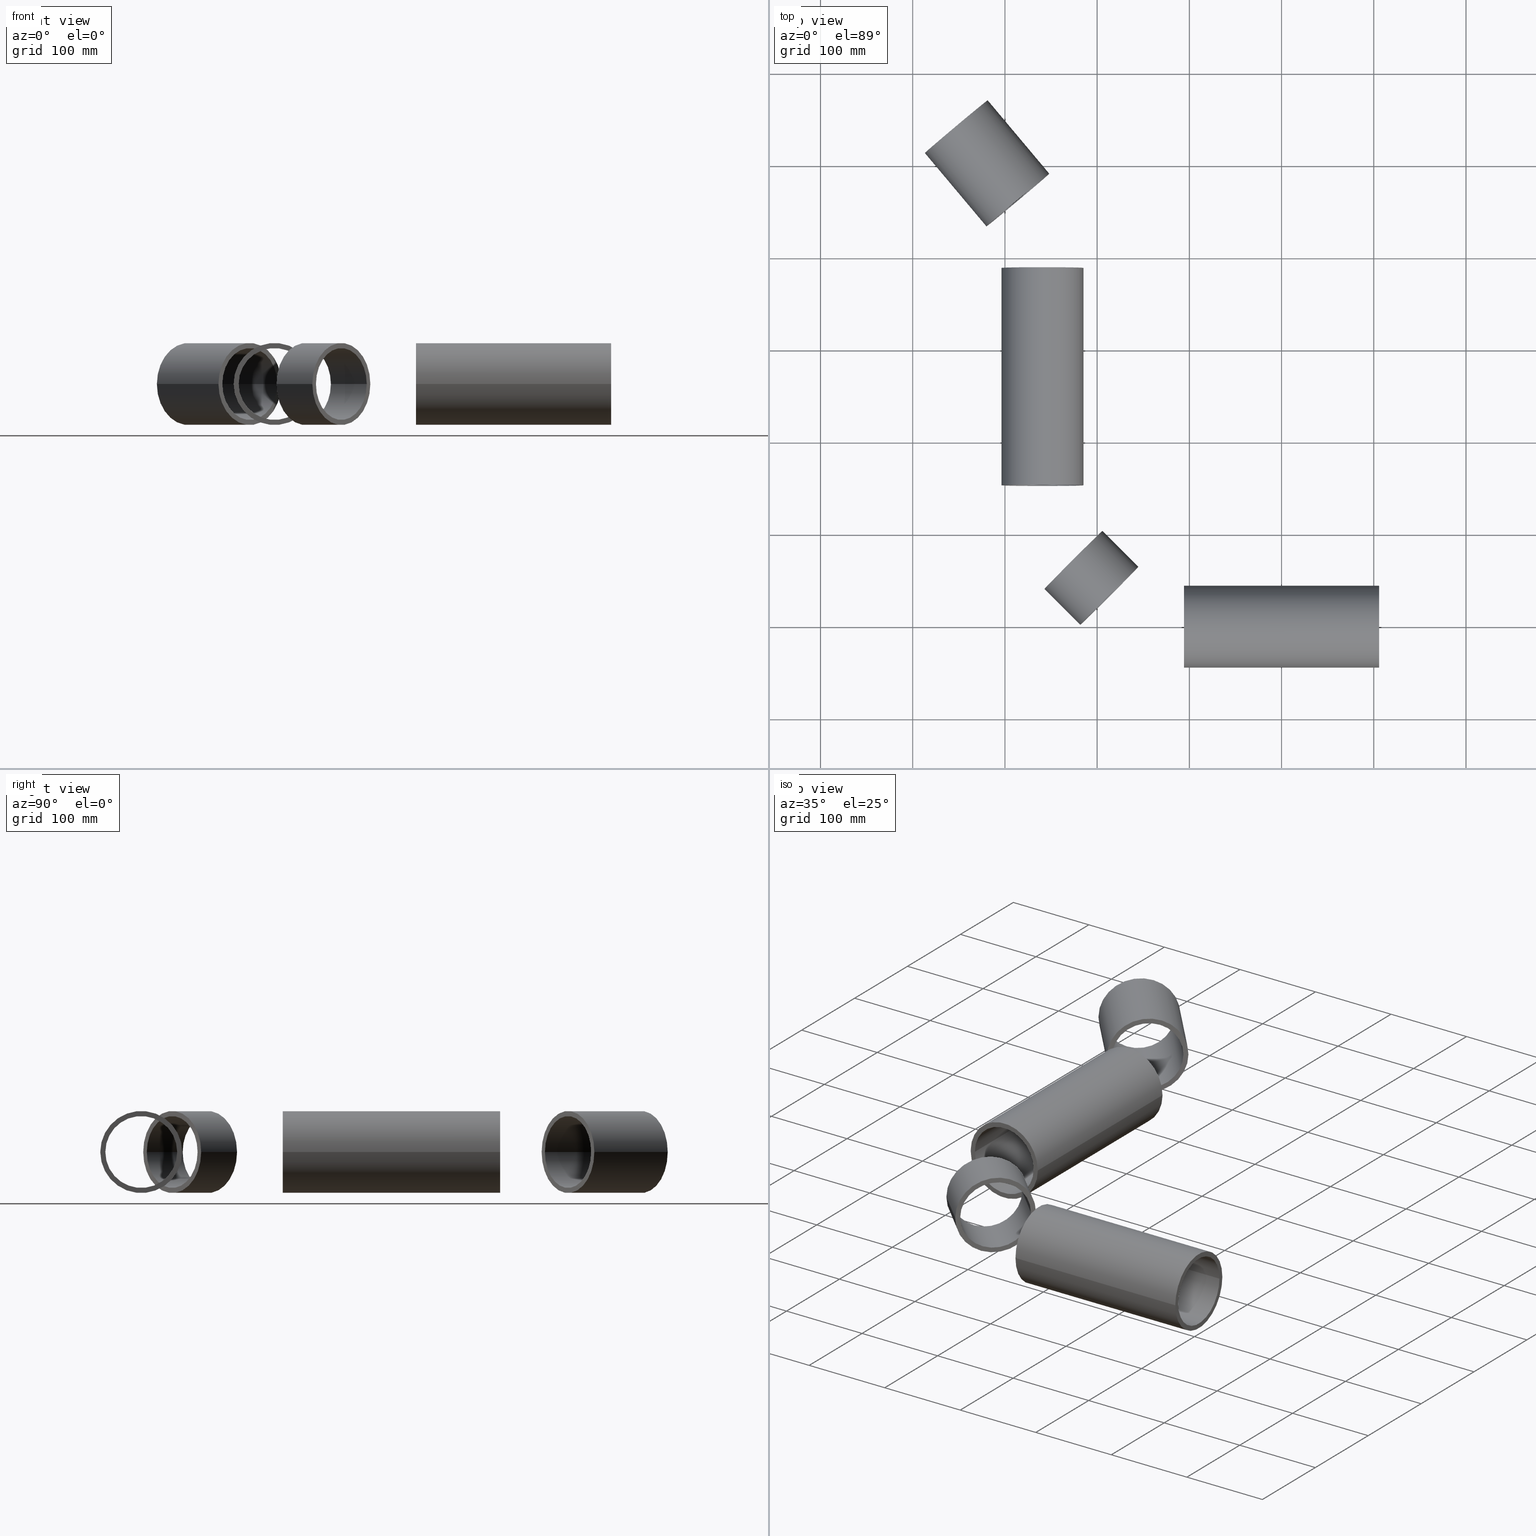
[diagram: canonical four-view strip — front | top / right | iso, engineering-drawing reading convention]
A machine part, canonical four-view strip (front | top / right | iso — engineering-drawing reading convention). The complete STEP part file that produces these views, byte-faithful:
ISO-10303-21;
HEADER;
FILE_DESCRIPTION (( 'STEP AP203' ),
    '1' );
FILE_NAME ('3996-35-10_REV_.step',
    '2026-03-04T02:48:12',
    ( '' ),
    ( '' ),
    'SwSTEP 2.0',
    'SolidWorks 2025',
    '' );
FILE_SCHEMA (( 'CONFIG_CONTROL_DESIGN' ));
ENDSEC;

DATA;
#1 = ORIENTED_EDGE ( 'NONE', *, *, #189, .F. ) ;
#2 = CARTESIAN_POINT ( 'NONE',  ( -105.8045635173704966, -1.203685620153159673E-14, 0.000000000000000000 ) ) ;
#3 = EDGE_LOOP ( 'NONE', ( #416, #512, #362, #326 ) ) ;
#4 = CYLINDRICAL_SURFACE ( 'NONE', #424, 44.45000000000001705 ) ;
#5 = EDGE_LOOP ( 'NONE', ( #627, #352, #290, #727 ) ) ;
#6 = DIRECTION ( 'NONE',  ( -1.000000000000000000, 0.000000000000000000, 0.000000000000000000 ) ) ;
#7 = EDGE_CURVE ( 'NONE', #80, #696, #73, .T. ) ;
#8 = ORIENTED_EDGE ( 'NONE', *, *, #623, .F. ) ;
#9 = EDGE_CURVE ( 'NONE', #110, #227, #411, .T. ) ;
#10 = AXIS2_PLACEMENT_3D ( 'NONE', #602, #529, #198 ) ;
#11 = CARTESIAN_POINT ( 'NONE',  ( 105.8045635173699992, -38.95000000000000995, 4.769999282678943960E-15 ) ) ;
#12 = CIRCLE ( 'NONE', #93, 44.45000000000004547 ) ;
#13 = CIRCLE ( 'NONE', #228, 44.45000000000005258 ) ;
#14 = EDGE_LOOP ( 'NONE', ( #445, #231, #458, #669 ) ) ;
#15 = DIRECTION ( 'NONE',  ( -0.7660444431189763481, -0.6427876096865413613, 0.000000000000000000 ) ) ;
#16 = DIRECTION ( 'NONE',  ( 2.220446049250312588E-16, 1.000000000000000000, 0.000000000000000000 ) ) ;
#17 = VERTEX_POINT ( 'NONE', #715 ) ;
#18 = CARTESIAN_POINT ( 'NONE',  ( -352.7675603857644546, 542.3395555688102831, 0.000000000000000000 ) ) ;
#19 = DIRECTION ( 'NONE',  ( -2.354570124668123057E-16, -1.000000000000000000, -0.000000000000000000 ) ) ;
#20 = EDGE_LOOP ( 'NONE', ( #720, #119, #463, #576 ) ) ;
#21 = CYLINDRICAL_SURFACE ( 'NONE', #320, 38.95000000000003837 ) ;
#22 = CARTESIAN_POINT ( 'NONE',  ( -298.1454364826298047, 153.3908729652592058, 4.769999282678941594E-15 ) ) ;
#23 = CARTESIAN_POINT ( 'NONE',  ( -186.7682899632294209, 33.53627355413972566, 0.000000000000000000 ) ) ;
#24 = AXIS2_PLACEMENT_3D ( 'NONE', #526, #588, #645 ) ;
#25 = CARTESIAN_POINT ( 'NONE',  ( -352.7675603857644546, 542.3395555688102831, 0.000000000000000000 ) ) ;
#26 = CC_DESIGN_PERSON_AND_ORGANIZATION_ASSIGNMENT ( #265, #649, ( #266 ) ) ;
#27 = FACE_OUTER_BOUND ( 'NONE', #617, .T. ) ;
#28 = CARTESIAN_POINT ( 'NONE',  ( -186.7682899632294209, 33.53627355413972566, 0.000000000000000000 ) ) ;
#29 = DIRECTION ( 'NONE',  ( -0.7660444431189763481, -0.6427876096865413613, 0.000000000000000000 ) ) ;
#30 = CARTESIAN_POINT ( 'NONE',  ( -298.1454364826297478, 389.1500489170994115, 4.769999282678941594E-15 ) ) ;
#31 = PERSON_AND_ORGANIZATION ( #453, #577 ) ;
#32 = CARTESIAN_POINT ( 'NONE',  ( -259.1954364826297024, 389.1500489170994115, 0.000000000000000000 ) ) ;
#33 = DIRECTION ( 'NONE',  ( 0.7071067811865520136, -0.7071067811865432429, 0.000000000000000000 ) ) ;
#34 = EDGE_CURVE ( 'NONE', #80, #51, #367, .T. ) ;
#35 = EDGE_CURVE ( 'NONE', #525, #100, #209, .T. ) ;
#36 = PERSON_AND_ORGANIZATION_ROLE ( 'classification_officer' ) ;
#37 = DIRECTION ( 'NONE',  ( -2.354570124668123057E-16, -1.000000000000000000, -0.000000000000000000 ) ) ;
#38 = AXIS2_PLACEMENT_3D ( 'NONE', #186, #409, #636 ) ;
#39 = PLANE ( 'NONE',  #83 ) ;
#40 = CIRCLE ( 'NONE', #724, 44.45000000000003837 ) ;
#41 = APPROVAL_STATUS ( 'not_yet_approved' ) ;
#42 = DIRECTION ( 'NONE',  ( 1.000000000000000000, 1.224646799147352961E-16, -0.000000000000000000 ) ) ;
#43 = APPROVAL_STATUS ( 'not_yet_approved' ) ;
#44 = PRODUCT_DEFINITION_SHAPE ( 'NONE', 'NONE',  #133 ) ;
#45 = CARTESIAN_POINT ( 'NONE',  ( -298.1454364826297478, 389.1500489170994115, 4.769999282678943171E-15 ) ) ;
#46 = EDGE_LOOP ( 'NONE', ( #728, #508 ) ) ;
#47 = CC_DESIGN_PERSON_AND_ORGANIZATION_ASSIGNMENT ( #138, #36, ( #426 ) ) ;
#48 = VECTOR ( 'NONE', #99, 1000.000000000000000 ) ;
#49 = DIRECTION ( 'NONE',  ( 0.000000000000000000, 1.000000000000000000, 0.000000000000000000 ) ) ;
#50 = DIRECTION ( 'NONE',  ( -1.000000000000000000, -1.110223024625156294E-16, 0.000000000000000000 ) ) ;
#51 = VERTEX_POINT ( 'NONE', #596 ) ;
#52 = ORIENTED_EDGE ( 'NONE', *, *, #267, .F. ) ;
#53 = ADVANCED_FACE ( 'NONE', ( #305 ), #252, .T. ) ;
#54 = VERTEX_POINT ( 'NONE', #654 ) ;
#55 = AXIS2_PLACEMENT_3D ( 'NONE', #647, #263, #310 ) ;
#56 = ORIENTED_EDGE ( 'NONE', *, *, #126, .F. ) ;
#57 = AXIS2_PLACEMENT_3D ( 'NONE', #28, #250, #695 ) ;
#58 = ORIENTED_EDGE ( 'NONE', *, *, #364, .F. ) ;
#59 = ORIENTED_EDGE ( 'NONE', *, *, #470, .F. ) ;
#60 = LINE ( 'NONE', #45, #497 ) ;
#61 = ORIENTED_EDGE ( 'NONE', *, *, #348, .T. ) ;
#62 = ADVANCED_FACE ( 'NONE', ( #420 ), #704, .T. ) ;
#63 = DIRECTION ( 'NONE',  ( -2.354570124668123057E-16, -1.000000000000000000, -0.000000000000000000 ) ) ;
#64 = EDGE_LOOP ( 'NONE', ( #169, #171 ) ) ;
#65 = PLANE ( 'NONE',  #205 ) ;
#66 = ORIENTED_EDGE ( 'NONE', *, *, #314, .F. ) ;
#67 = DIRECTION ( 'NONE',  ( -0.6427876096865413613, 0.7660444431189764591, 0.000000000000000000 ) ) ;
#68 = DIRECTION ( 'NONE',  ( 0.000000000000000000, -1.000000000000000000, 0.000000000000000000 ) ) ;
#69 = VECTOR ( 'NONE', #151, 1000.000000000000000 ) ;
#70 = CARTESIAN_POINT ( 'NONE',  ( -322.9301293262802801, 567.3761329661010677, 0.000000000000000000 ) ) ;
#71 = AXIS2_PLACEMENT_3D ( 'NONE', #561, #299, #528 ) ;
#72 = VECTOR ( 'NONE', #361, 1000.000000000000000 ) ;
#73 = LINE ( 'NONE', #244, #217 ) ;
#74 = DIRECTION ( 'NONE',  ( 0.7071067811865520136, -0.7071067811865432429, 0.000000000000000000 ) ) ;
#75 = CARTESIAN_POINT ( 'NONE',  ( -259.1954364826297592, 153.3908729652592058, 0.000000000000000000 ) ) ;
#76 = CARTESIAN_POINT ( 'NONE',  ( -105.8045635173704966, -44.45000000000003126, 5.443555022209987275E-15 ) ) ;
#77 = DIRECTION ( 'NONE',  ( 0.7071067811865520136, -0.7071067811865432429, 0.000000000000000000 ) ) ;
#78 = FACE_OUTER_BOUND ( 'NONE', #103, .T. ) ;
#79 = CC_DESIGN_PERSON_AND_ORGANIZATION_ASSIGNMENT ( #653, #433, ( #133 ) ) ;
#80 = VERTEX_POINT ( 'NONE', #86 ) ;
#81 = LINE ( 'NONE', #478, #369 ) ;
#82 = DIRECTION ( 'NONE',  ( -1.000000000000000000, -1.110223024625156294E-16, 0.000000000000000000 ) ) ;
#83 = AXIS2_PLACEMENT_3D ( 'NONE', #535, #253, #701 ) ;
#84 = LINE ( 'NONE', #538, #140 ) ;
#85 = DATE_AND_TIME ( #147, #298 ) ;
#86 = CARTESIAN_POINT ( 'NONE',  ( -318.7168848891259927, 570.9114648193771018, 0.000000000000000000 ) ) ;
#87 = CARTESIAN_POINT ( 'NONE',  ( -186.7682899632294209, 33.53627355413972566, 0.000000000000000000 ) ) ;
#88 = ADVANCED_FACE ( 'NONE', ( #434 ), #707, .F. ) ;
#89 = FACE_OUTER_BOUND ( 'NONE', #230, .T. ) ;
#90 = DIRECTION ( 'NONE',  ( 0.7071067811865431318, 0.7071067811865519026, 0.000000000000000000 ) ) ;
#91 = CARTESIAN_POINT ( 'NONE',  ( -105.8045635173704966, -1.203685620153159673E-14, 0.000000000000000000 ) ) ;
#92 = DIRECTION ( 'NONE',  ( -0.7071067811865519026, 0.7071067811865431318, -0.000000000000000000 ) ) ;
#93 = AXIS2_PLACEMENT_3D ( 'NONE', #694, #515, #6 ) ;
#94 = AXIS2_PLACEMENT_3D ( 'NONE', #304, #134, #522 ) ;
#95 = DATE_AND_TIME ( #600, #452 ) ;
#96 = FACE_OUTER_BOUND ( 'NONE', #131, .T. ) ;
#97 = CALENDAR_DATE ( 2026, 4, 3 ) ;
#98 = ADVANCED_FACE ( 'NONE', ( #212, #89 ), #700, .T. ) ;
#99 = DIRECTION ( 'NONE',  ( 1.000000000000000000, 1.224646799147352961E-16, -0.000000000000000000 ) ) ;
#100 = VERTEX_POINT ( 'NONE', #365 ) ;
#101 = CARTESIAN_POINT ( 'NONE',  ( -105.8045635173704966, -38.95000000000003837, 4.769999282678943960E-15 ) ) ;
#102 = AXIS2_PLACEMENT_3D ( 'NONE', #350, #573, #68 ) ;
#103 = EDGE_LOOP ( 'NONE', ( #59, #731, #174, #663 ) ) ;
#104 = DIRECTION ( 'NONE',  ( -1.000000000000000000, 0.000000000000000000, 0.000000000000000000 ) ) ;
#105 = CIRCLE ( 'NONE', #733, 38.95000000000003837 ) ;
#106 = CIRCLE ( 'NONE', #94, 38.95000000000003126 ) ;
#107 = CARTESIAN_POINT ( 'NONE',  ( -159.2264808360135362, 61.07808268135593721, 4.769999282678943960E-15 ) ) ;
#108 = ORIENTED_EDGE ( 'NONE', *, *, #689, .T. ) ;
#109 = EDGE_CURVE ( 'NONE', #286, #606, #587, .T. ) ;
#110 = VERTEX_POINT ( 'NONE', #650 ) ;
#111 = EDGE_LOOP ( 'NONE', ( #571, #455 ) ) ;
#112 = ORIENTED_EDGE ( 'NONE', *, *, #34, .T. ) ;
#113 = PLANE ( 'NONE',  #355 ) ;
#114 = ORIENTED_EDGE ( 'NONE', *, *, #572, .F. ) ;
#115 = CIRCLE ( 'NONE', #532, 44.45000000000002416 ) ;
#116 = EDGE_CURVE ( 'NONE', #54, #383, #84, .T. ) ;
#117 = CARTESIAN_POINT ( 'NONE',  ( -259.1954364826297024, 389.1500489170994115, 0.000000000000000000 ) ) ;
#118 = DIRECTION ( 'NONE',  ( 0.7660444431189770143, 0.6427876096865405842, 0.000000000000000000 ) ) ;
#119 = ORIENTED_EDGE ( 'NONE', *, *, #427, .T. ) ;
#120 = DIRECTION ( 'NONE',  ( 0.6427876096865412503, -0.7660444431189763481, -0.000000000000000000 ) ) ;
#121 = EDGE_LOOP ( 'NONE', ( #302, #340, #563, #165 ) ) ;
#122 = CARTESIAN_POINT ( 'NONE',  ( -285.9833477455069328, 462.7492302262081694, 0.000000000000000000 ) ) ;
#123 = DIRECTION ( 'NONE',  ( 0.6427876096865413613, -0.7660444431189764591, -0.000000000000000000 ) ) ;
#124 = DIRECTION ( 'NONE',  ( 2.220446049250312588E-16, 1.000000000000000000, 0.000000000000000000 ) ) ;
#125 = ORIENTED_EDGE ( 'NONE', *, *, #109, .F. ) ;
#126 = EDGE_CURVE ( 'NONE', #383, #358, #327, .T. ) ;
#127 = CARTESIAN_POINT ( 'NONE',  ( -352.7675603857644546, 542.3395555688102831, 0.000000000000000000 ) ) ;
#128 = CARTESIAN_POINT ( 'NONE',  ( -186.7682899632294209, 33.53627355413972566, 0.000000000000000000 ) ) ;
#129 = CARTESIAN_POINT ( 'NONE',  ( -285.9833477455069328, 462.7492302262081694, 0.000000000000000000 ) ) ;
#130 = VECTOR ( 'NONE', #492, 1000.000000000000000 ) ;
#131 = EDGE_LOOP ( 'NONE', ( #225, #241, #277, #671 ) ) ;
#132 = DIRECTION ( 'NONE',  ( -0.6427876096865413613, 0.7660444431189764591, 0.000000000000000000 ) ) ;
#133 = PRODUCT_DEFINITION ( 'UNKNOWN', '', #332, #196 ) ;
#134 = DIRECTION ( 'NONE',  ( -1.000000000000000000, -1.110223024625156294E-16, 0.000000000000000000 ) ) ;
#135 = FACE_OUTER_BOUND ( 'NONE', #639, .T. ) ;
#136 = DIRECTION ( 'NONE',  ( -2.354570124668123057E-16, -1.000000000000000000, -0.000000000000000000 ) ) ;
#137 = FACE_OUTER_BOUND ( 'NONE', #552, .T. ) ;
#138 = PERSON_AND_ORGANIZATION ( #453, #577 ) ;
#139 = EDGE_CURVE ( 'NONE', #220, #630, #354, .T. ) ;
#140 = VECTOR ( 'NONE', #37, 1000.000000000000000 ) ;
#141 = EDGE_CURVE ( 'NONE', #100, #385, #283, .T. ) ;
#142 = VECTOR ( 'NONE', #597, 1000.000000000000114 ) ;
#143 = DIRECTION ( 'NONE',  ( -1.000000000000000000, 2.220446049250312588E-16, 0.000000000000000000 ) ) ;
#144 = AXIS2_PLACEMENT_3D ( 'NONE', #292, #351, #474 ) ;
#145 = CALENDAR_DATE ( 2026, 4, 3 ) ;
#146 = DIRECTION ( 'NONE',  ( 1.000000000000000000, 1.224646799147352961E-16, -0.000000000000000000 ) ) ;
#147 = CALENDAR_DATE ( 2026, 4, 3 ) ;
#148 = PLANE ( 'NONE',  #152 ) ;
#149 = PLANE ( 'NONE',  #275 ) ;
#150 = DATE_TIME_ROLE ( 'creation_date' ) ;
#151 = DIRECTION ( 'NONE',  ( 1.000000000000000000, 1.224646799147352961E-16, -0.000000000000000000 ) ) ;
#152 = AXIS2_PLACEMENT_3D ( 'NONE', #32, #201, #143 ) ;
#153 = DIRECTION ( 'NONE',  ( -0.7660444431189763481, -0.6427876096865412503, 0.000000000000000000 ) ) ;
#154 = AXIS2_PLACEMENT_3D ( 'NONE', #614, #50, #608 ) ;
#155 = ADVANCED_FACE ( 'NONE', ( #256, #431 ), #148, .T. ) ;
#156 = MECHANICAL_CONTEXT ( 'NONE', #516, 'mechanical' ) ;
#157 = CARTESIAN_POINT ( 'NONE',  ( -220.2454364826296853, 389.1500489170994115, 0.000000000000000000 ) ) ;
#158 = ORIENTED_EDGE ( 'NONE', *, *, #214, .F. ) ;
#159 = DIRECTION ( 'NONE',  ( -0.6427876096865413613, 0.7660444431189764591, 0.000000000000000000 ) ) ;
#160 = ORIENTED_EDGE ( 'NONE', *, *, #712, .T. ) ;
#161 = ADVANCED_FACE ( 'NONE', ( #370 ), #593, .T. ) ;
#162 = DIRECTION ( 'NONE',  ( -1.000000000000000000, 0.000000000000000000, 0.000000000000000000 ) ) ;
#163 = ADVANCED_FACE ( 'NONE', ( #665 ), #613, .T. ) ;
#164 = AXIS2_PLACEMENT_3D ( 'NONE', #91, #146, #486 ) ;
#165 = ORIENTED_EDGE ( 'NONE', *, *, #141, .F. ) ;
#166 = AXIS2_PLACEMENT_3D ( 'NONE', #697, #77, #90 ) ;
#167 = CIRCLE ( 'NONE', #498, 38.95000000000003837 ) ;
#168 = ORIENTED_EDGE ( 'NONE', *, *, #297, .F. ) ;
#169 = ORIENTED_EDGE ( 'NONE', *, *, #586, .F. ) ;
#170 = CC_DESIGN_PERSON_AND_ORGANIZATION_ASSIGNMENT ( #430, #540, ( #332 ) ) ;
#171 = ORIENTED_EDGE ( 'NONE', *, *, #451, .F. ) ;
#172 = EDGE_LOOP ( 'NONE', ( #112, #405 ) ) ;
#173 = CARTESIAN_POINT ( 'NONE',  ( -285.9833477455069328, 462.7492302262081694, 0.000000000000000000 ) ) ;
#174 = ORIENTED_EDGE ( 'NONE', *, *, #243, .T. ) ;
#175 = VERTEX_POINT ( 'NONE', #461 ) ;
#176 = CARTESIAN_POINT ( 'NONE',  ( -186.7682899632294209, 33.53627355413972566, 0.000000000000000000 ) ) ;
#177 = CIRCLE ( 'NONE', #307, 38.95000000000003126 ) ;
#178 = ORIENTED_EDGE ( 'NONE', *, *, #599, .F. ) ;
#179 = AXIS2_PLACEMENT_3D ( 'NONE', #603, #490, #389 ) ;
#180 = PRODUCT_RELATED_PRODUCT_CATEGORY ( 'detail', '', ( #266 ) ) ;
#181 = DIRECTION ( 'NONE',  ( 0.6427876096865413613, -0.7660444431189764591, -0.000000000000000000 ) ) ;
#182 = ORIENTED_EDGE ( 'NONE', *, *, #254, .T. ) ;
#183 = DIRECTION ( 'NONE',  ( 0.7071067811865431318, 0.7071067811865521247, 0.000000000000000000 ) ) ;
#184 = CARTESIAN_POINT ( 'NONE',  ( -320.0340232421454516, 434.1773209756414076, 5.443555022209987275E-15 ) ) ;
#185 = ORIENTED_EDGE ( 'NONE', *, *, #214, .T. ) ;
#186 = CARTESIAN_POINT ( 'NONE',  ( -186.7682899632294209, 33.53627355413972566, 0.000000000000000000 ) ) ;
#187 = DIRECTION ( 'NONE',  ( 2.220446049250312588E-16, 1.000000000000000000, 0.000000000000000000 ) ) ;
#188 = EDGE_LOOP ( 'NONE', ( #8, #178, #559, #632 ) ) ;
#189 = EDGE_CURVE ( 'NONE', #195, #282, #531, .T. ) ;
#190 = DIRECTION ( 'NONE',  ( 0.000000000000000000, -1.000000000000000000, 0.000000000000000000 ) ) ;
#191 = CARTESIAN_POINT ( 'NONE',  ( -105.8045635173704966, 38.95000000000000995, 0.000000000000000000 ) ) ;
#192 = DIRECTION ( 'NONE',  ( -1.000000000000000000, 0.000000000000000000, 0.000000000000000000 ) ) ;
#193 = AXIS2_PLACEMENT_3D ( 'NONE', #429, #584, #417 ) ;
#194 = APPROVAL_PERSON_ORGANIZATION ( #548, #734, #312 ) ;
#195 = VERTEX_POINT ( 'NONE', #191 ) ;
#196 = DESIGN_CONTEXT ( 'detailed design', #721, 'design' ) ;
#197 = DIRECTION ( 'NONE',  ( 0.7071067811865520136, -0.7071067811865432429, 0.000000000000000000 ) ) ;
#198 = DIRECTION ( 'NONE',  ( 0.7071067811865431318, 0.7071067811865519026, 0.000000000000000000 ) ) ;
#199 = DIRECTION ( 'NONE',  ( 0.6427876096865413613, -0.7660444431189764591, -0.000000000000000000 ) ) ;
#200 = ADVANCED_FACE ( 'NONE', ( #295 ), #691, .T. ) ;
#201 = DIRECTION ( 'NONE',  ( 2.220446049250312588E-16, 1.000000000000000000, 0.000000000000000000 ) ) ;
#202 = CARTESIAN_POINT ( 'NONE',  ( -214.7454364826296853, 389.1500489170994115, 0.000000000000000000 ) ) ;
#203 = MANIFOLD_SOLID_BREP ( 'Stainless chs 88.9 X 5.5 CHS(1)[4]', #387 ) ;
#204 = CIRCLE ( 'NONE', #261, 38.95000000000003126 ) ;
#205 = AXIS2_PLACEMENT_3D ( 'NONE', #242, #466, #692 ) ;
#206 = DIRECTION ( 'NONE',  ( 1.000000000000000000, 0.000000000000000000, 0.000000000000000000 ) ) ;
#207 = DIRECTION ( 'NONE',  ( -2.354570124668123057E-16, -1.000000000000000000, -0.000000000000000000 ) ) ;
#208 = APPROVAL_ROLE ( '' ) ;
#209 = LINE ( 'NONE', #371, #397 ) ;
#210 = FACE_BOUND ( 'NONE', #495, .T. ) ;
#211 = COORDINATED_UNIVERSAL_TIME_OFFSET ( 10, 0, .AHEAD. ) ;
#212 = FACE_BOUND ( 'NONE', #502, .T. ) ;
#213 = CARTESIAN_POINT ( 'NONE',  ( -382.6049914452486291, 517.3029781715194986, 4.769999282678943960E-15 ) ) ;
#214 = EDGE_CURVE ( 'NONE', #222, #236, #177, .T. ) ;
#215 =( NAMED_UNIT ( * ) PLANE_ANGLE_UNIT ( ) SI_UNIT ( $, .RADIAN. ) );
#216 = ORIENTED_EDGE ( 'NONE', *, *, #440, .F. ) ;
#217 = VECTOR ( 'NONE', #467, 1000.000000000000114 ) ;
#218 = FACE_OUTER_BOUND ( 'NONE', #64, .T. ) ;
#219 = CIRCLE ( 'NONE', #400, 44.45000000000002416 ) ;
#220 = VERTEX_POINT ( 'NONE', #22 ) ;
#221 = CYLINDRICAL_SURFACE ( 'NONE', #251, 38.95000000000004547 ) ;
#222 = VERTEX_POINT ( 'NONE', #393 ) ;
#223 = EDGE_CURVE ( 'NONE', #390, #554, #448, .T. ) ;
#224 = CARTESIAN_POINT ( 'NONE',  ( -285.9833477455069328, 462.7492302262081694, 0.000000000000000000 ) ) ;
#225 = ORIENTED_EDGE ( 'NONE', *, *, #503, .T. ) ;
#226 = DIRECTION ( 'NONE',  ( -2.354570124668123057E-16, -1.000000000000000000, -0.000000000000000000 ) ) ;
#227 = VERTEX_POINT ( 'NONE', #664 ) ;
#228 = AXIS2_PLACEMENT_3D ( 'NONE', #224, #550, #717 ) ;
#229 = ORIENTED_EDGE ( 'NONE', *, *, #243, .F. ) ;
#230 = EDGE_LOOP ( 'NONE', ( #284, #505 ) ) ;
#231 = ORIENTED_EDGE ( 'NONE', *, *, #504, .T. ) ;
#232 = DIRECTION ( 'NONE',  ( 0.6427876096865413613, -0.7660444431189764591, -0.000000000000000000 ) ) ;
#233 = EDGE_CURVE ( 'NONE', #554, #630, #333, .T. ) ;
#234 = ORIENTED_EDGE ( 'NONE', *, *, #689, .F. ) ;
#235 = CARTESIAN_POINT ( 'NONE',  ( -186.7682899632294209, 33.53627355413972566, 0.000000000000000000 ) ) ;
#236 = VERTEX_POINT ( 'NONE', #446 ) ;
#237 = CARTESIAN_POINT ( 'NONE',  ( -352.7675603857644546, 542.3395555688102831, 0.000000000000000000 ) ) ;
#238 = AXIS2_PLACEMENT_3D ( 'NONE', #23, #197, #533 ) ;
#239 = CYLINDRICAL_SURFACE ( 'NONE', #144, 38.95000000000002416 ) ;
#240 = LOCAL_TIME ( 13, 48, 12.00000000000000000, #537 ) ;
#241 = ORIENTED_EDGE ( 'NONE', *, *, #35, .T. ) ;
#242 = CARTESIAN_POINT ( 'NONE',  ( -259.1954364826297592, 153.3908729652592058, 0.000000000000000000 ) ) ;
#243 = EDGE_CURVE ( 'NONE', #195, #17, #391, .T. ) ;
#244 = CARTESIAN_POINT ( 'NONE',  ( -318.7168848891259358, 570.9114648193771018, 0.000000000000000000 ) ) ;
#245 = CYLINDRICAL_SURFACE ( 'NONE', #670, 44.45000000000001705 ) ;
#246 = CARTESIAN_POINT ( 'NONE',  ( -155.3373935394875502, 64.96716997788196579, 5.443555022209987275E-15 ) ) ;
#247 = VERTEX_POINT ( 'NONE', #621 ) ;
#248 = DIRECTION ( 'NONE',  ( 0.7071067811865429098, 0.7071067811865520136, 0.000000000000000000 ) ) ;
#249 = CLOSED_SHELL ( 'NONE', ( #62, #88, #662, #161, #388, #536 ) ) ;
#250 = DIRECTION ( 'NONE',  ( -0.7071067811865519026, 0.7071067811865431318, -0.000000000000000000 ) ) ;
#251 = AXIS2_PLACEMENT_3D ( 'NONE', #329, #181, #323 ) ;
#252 = CYLINDRICAL_SURFACE ( 'NONE', #555, 44.45000000000001705 ) ;
#253 = DIRECTION ( 'NONE',  ( -1.000000000000000000, -1.110223024625156294E-16, 0.000000000000000000 ) ) ;
#254 = EDGE_CURVE ( 'NONE', #385, #100, #680, .T. ) ;
#255 = CARTESIAN_POINT ( 'NONE',  ( 105.8045635173699992, 1.387778780781445676E-14, 0.000000000000000000 ) ) ;
#256 = FACE_BOUND ( 'NONE', #456, .T. ) ;
#257 = CARTESIAN_POINT ( 'NONE',  ( -352.7675603857644546, 542.3395555688102831, 0.000000000000000000 ) ) ;
#258 = DIRECTION ( 'NONE',  ( 0.000000000000000000, 0.000000000000000000, 1.000000000000000000 ) ) ;
#259 = CARTESIAN_POINT ( 'NONE',  ( -105.8045635173704966, -1.203685620153159673E-14, 0.000000000000000000 ) ) ;
#260 = DIRECTION ( 'NONE',  ( 0.000000000000000000, -1.000000000000000000, 0.000000000000000000 ) ) ;
#261 = AXIS2_PLACEMENT_3D ( 'NONE', #255, #469, #419 ) ;
#262 = CC_DESIGN_APPROVAL ( #693, ( #426 ) ) ;
#263 = DIRECTION ( 'NONE',  ( 2.220446049250312588E-16, 1.000000000000000000, 0.000000000000000000 ) ) ;
#264 = FACE_OUTER_BOUND ( 'NONE', #121, .T. ) ;
#265 = PERSON_AND_ORGANIZATION ( #453, #577 ) ;
#266 = PRODUCT ( '3996-35-10_REV_', '3996-35-10_REV_', '', ( #156 ) ) ;
#267 = EDGE_CURVE ( 'NONE', #282, #195, #285, .T. ) ;
#268 = DIRECTION ( 'NONE',  ( -1.000000000000000000, 0.000000000000000000, 0.000000000000000000 ) ) ;
#269 = CARTESIAN_POINT ( 'NONE',  ( -322.9301293262802801, 567.3761329661010677, 0.000000000000000000 ) ) ;
#270 = APPROVAL_DATE_TIME ( #95, #693 ) ;
#271 = CARTESIAN_POINT ( 'NONE',  ( -352.7675603857644546, 542.3395555688102831, 0.000000000000000000 ) ) ;
#272 = DIRECTION ( 'NONE',  ( 1.000000000000000000, 0.000000000000000000, 0.000000000000000000 ) ) ;
#273 = VECTOR ( 'NONE', #581, 1000.000000000000000 ) ;
#274 = PLANE ( 'NONE',  #341 ) ;
#275 = AXIS2_PLACEMENT_3D ( 'NONE', #303, #159, #153 ) ;
#276 = ADVANCED_FACE ( 'NONE', ( #568, #634 ), #113, .F. ) ;
#277 = ORIENTED_EDGE ( 'NONE', *, *, #254, .F. ) ;
#278 = ADVANCED_FACE ( 'NONE', ( #626 ), #245, .T. ) ;
#279 = EDGE_LOOP ( 'NONE', ( #336, #56 ) ) ;
#280 = DIRECTION ( 'NONE',  ( -0.6427876096865413613, 0.7660444431189764591, 0.000000000000000000 ) ) ;
#281 = EDGE_LOOP ( 'NONE', ( #114, #392 ) ) ;
#282 = VERTEX_POINT ( 'NONE', #399 ) ;
#283 = CIRCLE ( 'NONE', #482, 38.95000000000004547 ) ;
#284 = ORIENTED_EDGE ( 'NONE', *, *, #599, .T. ) ;
#285 = CIRCLE ( 'NONE', #414, 38.95000000000003126 ) ;
#286 = VERTEX_POINT ( 'NONE', #457 ) ;
#287 = EDGE_CURVE ( 'NONE', #525, #439, #328, .T. ) ;
#288 = ORIENTED_EDGE ( 'NONE', *, *, #233, .F. ) ;
#289 = FACE_OUTER_BOUND ( 'NONE', #281, .T. ) ;
#290 = ORIENTED_EDGE ( 'NONE', *, *, #338, .T. ) ;
#291 = DIRECTION ( 'NONE',  ( 1.000000000000000000, 0.000000000000000000, 0.000000000000000000 ) ) ;
#292 = CARTESIAN_POINT ( 'NONE',  ( -105.8045635173704966, -1.203685620153159673E-14, 0.000000000000000000 ) ) ;
#293 = ADVANCED_BREP_SHAPE_REPRESENTATION ( '3996-35-10_REV_', ( #675, #685, #449, #203, #521 ), #545 ) ;
#294 = ORIENTED_EDGE ( 'NONE', *, *, #373, .T. ) ;
#295 = FACE_OUTER_BOUND ( 'NONE', #5, .T. ) ;
#296 = AXIS2_PLACEMENT_3D ( 'NONE', #176, #74, #183 ) ;
#297 = EDGE_CURVE ( 'NONE', #236, #222, #681, .T. ) ;
#298 = LOCAL_TIME ( 13, 48, 12.00000000000000000, #319 ) ;
#299 = DIRECTION ( 'NONE',  ( 0.7071067811865520136, -0.7071067811865432429, 0.000000000000000000 ) ) ;
#300 = ORIENTED_EDGE ( 'NONE', *, *, #427, .F. ) ;
#301 = CYLINDRICAL_SURFACE ( 'NONE', #557, 38.95000000000003837 ) ;
#302 = ORIENTED_EDGE ( 'NONE', *, *, #35, .F. ) ;
#303 = CARTESIAN_POINT ( 'NONE',  ( -352.7675603857644546, 542.3395555688102831, 0.000000000000000000 ) ) ;
#304 = CARTESIAN_POINT ( 'NONE',  ( 105.8045635173699992, 1.387778780781445676E-14, 0.000000000000000000 ) ) ;
#305 = FACE_OUTER_BOUND ( 'NONE', #683, .T. ) ;
#306 = DIRECTION ( 'NONE',  ( -0.6427876096865413613, 0.7660444431189764591, 0.000000000000000000 ) ) ;
#307 = AXIS2_PLACEMENT_3D ( 'NONE', #128, #360, #527 ) ;
#308 = DIRECTION ( 'NONE',  ( 0.000000000000000000, -1.000000000000000000, 0.000000000000000000 ) ) ;
#309 = AXIS2_PLACEMENT_3D ( 'NONE', #18, #677, #15 ) ;
#310 = DIRECTION ( 'NONE',  ( -1.000000000000000000, 0.000000000000000000, 0.000000000000000000 ) ) ;
#311 = ADVANCED_FACE ( 'NONE', ( #353 ), #468, .T. ) ;
#312 = APPROVAL_ROLE ( '' ) ;
#313 = DIRECTION ( 'NONE',  ( 1.000000000000000000, 1.224646799147352961E-16, -0.000000000000000000 ) ) ;
#314 = EDGE_CURVE ( 'NONE', #395, #54, #12, .T. ) ;
#315 = DATE_AND_TIME ( #97, #473 ) ;
#316 = CARTESIAN_POINT ( 'NONE',  ( -259.1954364826297592, 153.3908729652592058, 0.000000000000000000 ) ) ;
#317 = LINE ( 'NONE', #640, #506 ) ;
#318 = EDGE_CURVE ( 'NONE', #51, #80, #330, .T. ) ;
#319 = COORDINATED_UNIVERSAL_TIME_OFFSET ( 10, 0, .AHEAD. ) ;
#320 = AXIS2_PLACEMENT_3D ( 'NONE', #421, #476, #372 ) ;
#321 = CARTESIAN_POINT ( 'NONE',  ( -105.8045635173704966, -1.203685620153159673E-14, 0.000000000000000000 ) ) ;
#322 = DIRECTION ( 'NONE',  ( -0.7071067811865519026, 0.7071067811865431318, -0.000000000000000000 ) ) ;
#323 = DIRECTION ( 'NONE',  ( 0.7660444431189763481, 0.6427876096865413613, 0.000000000000000000 ) ) ;
#324 = DIRECTION ( 'NONE',  ( -2.354570124668123057E-16, -1.000000000000000000, -0.000000000000000000 ) ) ;
#325 = EDGE_CURVE ( 'NONE', #175, #401, #40, .T. ) ;
#326 = ORIENTED_EDGE ( 'NONE', *, *, #586, .T. ) ;
#327 = CIRCLE ( 'NONE', #423, 44.45000000000004547 ) ;
#328 = CIRCLE ( 'NONE', #309, 38.95000000000004547 ) ;
#329 = CARTESIAN_POINT ( 'NONE',  ( -352.7675603857644546, 542.3395555688102831, 0.000000000000000000 ) ) ;
#330 = CIRCLE ( 'NONE', #543, 44.45000000000001705 ) ;
#331 = ORIENTED_EDGE ( 'NONE', *, *, #116, .F. ) ;
#332 = PRODUCT_DEFINITION_FORMATION_WITH_SPECIFIED_SOURCE ( 'ANY', '', #266, .NOT_KNOWN. ) ;
#333 = LINE ( 'NONE', #386, #589 ) ;
#334 = LINE ( 'NONE', #501, #564 ) ;
#335 = ORIENTED_EDGE ( 'NONE', *, *, #139, .F. ) ;
#336 = ORIENTED_EDGE ( 'NONE', *, *, #712, .F. ) ;
#337 = ORIENTED_EDGE ( 'NONE', *, *, #479, .T. ) ;
#338 = EDGE_CURVE ( 'NONE', #247, #562, #483, .T. ) ;
#339 = AXIS2_PLACEMENT_3D ( 'NONE', #412, #123, #118 ) ;
#340 = ORIENTED_EDGE ( 'NONE', *, *, #287, .T. ) ;
#341 = AXIS2_PLACEMENT_3D ( 'NONE', #659, #444, #666 ) ;
#342 = EDGE_LOOP ( 'NONE', ( #690, #398, #569, #335 ) ) ;
#343 = EDGE_LOOP ( 'NONE', ( #182, #565 ) ) ;
#344 = ORIENTED_EDGE ( 'NONE', *, *, #609, .T. ) ;
#345 = FACE_BOUND ( 'NONE', #406, .T. ) ;
#346 = EDGE_CURVE ( 'NONE', #286, #110, #219, .T. ) ;
#347 = ORIENTED_EDGE ( 'NONE', *, *, #364, .T. ) ;
#348 = EDGE_CURVE ( 'NONE', #395, #358, #317, .T. ) ;
#349 = DIRECTION ( 'NONE',  ( 0.7660444431189770143, 0.6427876096865405842, 0.000000000000000000 ) ) ;
#350 = CARTESIAN_POINT ( 'NONE',  ( -105.8045635173704966, -1.203685620153159673E-14, 0.000000000000000000 ) ) ;
#351 = DIRECTION ( 'NONE',  ( 1.000000000000000000, 1.224646799147352961E-16, -0.000000000000000000 ) ) ;
#352 = ORIENTED_EDGE ( 'NONE', *, *, #623, .T. ) ;
#353 = FACE_OUTER_BOUND ( 'NONE', #514, .T. ) ;
#354 = CIRCLE ( 'NONE', #55, 38.95000000000003837 ) ;
#355 = AXIS2_PLACEMENT_3D ( 'NONE', #122, #67, #509 ) ;
#356 = CC_DESIGN_SECURITY_CLASSIFICATION ( #426, ( #332 ) ) ;
#357 = CARTESIAN_POINT ( 'NONE',  ( -253.2009720557056198, 44.88533739218336649, 0.000000000000000000 ) ) ;
#358 = VERTEX_POINT ( 'NONE', #366 ) ;
#359 = DIRECTION ( 'NONE',  ( -1.000000000000000000, -1.110223024625156294E-16, 0.000000000000000000 ) ) ;
#360 = DIRECTION ( 'NONE',  ( 0.7071067811865520136, -0.7071067811865432429, 0.000000000000000000 ) ) ;
#361 = DIRECTION ( 'NONE',  ( -0.7071067811865519026, 0.7071067811865431318, -0.000000000000000000 ) ) ;
#362 = ORIENTED_EDGE ( 'NONE', *, *, #109, .T. ) ;
#363 = CARTESIAN_POINT ( 'NONE',  ( -259.1954364826297024, 389.1500489170994115, 0.000000000000000000 ) ) ;
#364 = EDGE_CURVE ( 'NONE', #447, #610, #624, .T. ) ;
#365 = CARTESIAN_POINT ( 'NONE',  ( -315.8207788049911073, 437.7126528289173848, 4.769999282678943960E-15 ) ) ;
#366 = CARTESIAN_POINT ( 'NONE',  ( -214.7454364826297422, 153.3908729652592058, 0.000000000000000000 ) ) ;
#367 = CIRCLE ( 'NONE', #413, 44.45000000000001705 ) ;
#368 = APPLICATION_PROTOCOL_DEFINITION ( 'international standard', 'config_control_design', 1994, #721 ) ;
#369 = VECTOR ( 'NONE', #648, 1000.000000000000000 ) ;
#370 = FACE_OUTER_BOUND ( 'NONE', #3, .T. ) ;
#371 = CARTESIAN_POINT ( 'NONE',  ( -382.6049914452486291, 517.3029781715194986, 4.769999282678943960E-15 ) ) ;
#372 = DIRECTION ( 'NONE',  ( 1.000000000000000000, 0.000000000000000000, 0.000000000000000000 ) ) ;
#373 = EDGE_CURVE ( 'NONE', #236, #610, #81, .T. ) ;
#374 = DIRECTION ( 'NONE',  ( 1.000000000000000000, 1.224646799147352961E-16, -0.000000000000000000 ) ) ;
#375 = CARTESIAN_POINT ( 'NONE',  ( -105.8045635173704966, -1.203685620153159673E-14, 0.000000000000000000 ) ) ;
#376 = COORDINATED_UNIVERSAL_TIME_OFFSET ( 10, 0, .AHEAD. ) ;
#377 = LOCAL_TIME ( 13, 48, 12.00000000000000000, #211 ) ;
#378 = DIRECTION ( 'NONE',  ( 0.6427876096865412503, -0.7660444431189763481, -0.000000000000000000 ) ) ;
#379 = CARTESIAN_POINT ( 'NONE',  ( -105.8045635173704966, -1.203685620153159673E-14, 0.000000000000000000 ) ) ;
#380 = APPROVAL_DATE_TIME ( #658, #734 ) ;
#381 = ADVANCED_FACE ( 'NONE', ( #135 ), #21, .F. ) ;
#382 = CARTESIAN_POINT ( 'NONE',  ( -386.8182358824029734, 513.7676463182435782, 5.443555022209987275E-15 ) ) ;
#383 = VERTEX_POINT ( 'NONE', #530 ) ;
#384 = LINE ( 'NONE', #101, #48 ) ;
#385 = VERTEX_POINT ( 'NONE', #595 ) ;
#386 = CARTESIAN_POINT ( 'NONE',  ( -220.2454364826296853, 389.1500489170994115, 0.000000000000000000 ) ) ;
#387 = CLOSED_SHELL ( 'NONE', ( #200, #633, #402, #560, #98, #480 ) ) ;
#388 = ADVANCED_FACE ( 'NONE', ( #542, #27 ), #39, .T. ) ;
#389 = DIRECTION ( 'NONE',  ( 0.7071067811865431318, 0.7071067811865519026, 0.000000000000000000 ) ) ;
#390 = VERTEX_POINT ( 'NONE', #30 ) ;
#391 = LINE ( 'NONE', #616, #273 ) ;
#392 = ORIENTED_EDGE ( 'NONE', *, *, #338, .F. ) ;
#393 = CARTESIAN_POINT ( 'NONE',  ( -159.2264808360135362, 61.07808268135593721, 4.769999282678943960E-15 ) ) ;
#394 = ADVANCED_FACE ( 'NONE', ( #264 ), #487, .F. ) ;
#395 = VERTEX_POINT ( 'NONE', #202 ) ;
#396 = EDGE_LOOP ( 'NONE', ( #216, #510, #660, #125 ) ) ;
#397 = VECTOR ( 'NONE', #378, 1000.000000000000114 ) ;
#398 = ORIENTED_EDGE ( 'NONE', *, *, #223, .T. ) ;
#399 = CARTESIAN_POINT ( 'NONE',  ( -105.8045635173704966, -38.95000000000003837, 4.769999282678945538E-15 ) ) ;
#400 = AXIS2_PLACEMENT_3D ( 'NONE', #375, #539, #260 ) ;
#401 = VERTEX_POINT ( 'NONE', #642 ) ;
#402 = ADVANCED_FACE ( 'NONE', ( #137 ), #713, .F. ) ;
#403 = CARTESIAN_POINT ( 'NONE',  ( -225.6591629284897635, 72.42714651939957093, 0.000000000000000000 ) ) ;
#404 = ADVANCED_FACE ( 'NONE', ( #210, #432 ), #149, .T. ) ;
#405 = ORIENTED_EDGE ( 'NONE', *, *, #318, .T. ) ;
#406 = EDGE_LOOP ( 'NONE', ( #408, #465 ) ) ;
#407 = CARTESIAN_POINT ( 'NONE',  ( -259.1954364826297024, 389.1500489170994115, 0.000000000000000000 ) ) ;
#408 = ORIENTED_EDGE ( 'NONE', *, *, #566, .T. ) ;
#409 = DIRECTION ( 'NONE',  ( -0.7071067811865519026, 0.7071067811865431318, -0.000000000000000000 ) ) ;
#410 = DIRECTION ( 'NONE',  ( -1.000000000000000000, 0.000000000000000000, 0.000000000000000000 ) ) ;
#411 = LINE ( 'NONE', #76, #69 ) ;
#412 = CARTESIAN_POINT ( 'NONE',  ( -352.7675603857644546, 542.3395555688102831, 0.000000000000000000 ) ) ;
#413 = AXIS2_PLACEMENT_3D ( 'NONE', #25, #489, #481 ) ;
#414 = AXIS2_PLACEMENT_3D ( 'NONE', #2, #359, #190 ) ;
#415 = FACE_OUTER_BOUND ( 'NONE', #279, .T. ) ;
#416 = ORIENTED_EDGE ( 'NONE', *, *, #9, .F. ) ;
#417 = DIRECTION ( 'NONE',  ( 0.7071067811865431318, 0.7071067811865521247, 0.000000000000000000 ) ) ;
#418 = CC_DESIGN_DATE_AND_TIME_ASSIGNMENT ( #315, #150, ( #133 ) ) ;
#419 = DIRECTION ( 'NONE',  ( 0.000000000000000000, -1.000000000000000000, 0.000000000000000000 ) ) ;
#420 = FACE_OUTER_BOUND ( 'NONE', #396, .T. ) ;
#421 = CARTESIAN_POINT ( 'NONE',  ( -259.1954364826297024, 389.1500489170994115, 0.000000000000000000 ) ) ;
#422 = APPROVAL_DATE_TIME ( #551, #673 ) ;
#423 = AXIS2_PLACEMENT_3D ( 'NONE', #316, #541, #268 ) ;
#424 = AXIS2_PLACEMENT_3D ( 'NONE', #235, #322, #605 ) ;
#425 =( LENGTH_UNIT ( ) NAMED_UNIT ( * ) SI_UNIT ( .MILLI., .METRE. ) );
#426 = SECURITY_CLASSIFICATION ( '', '', #643 ) ;
#427 = EDGE_CURVE ( 'NONE', #222, #447, #435, .T. ) ;
#428 = DIRECTION ( 'NONE',  ( 0.000000000000000000, 1.000000000000000000, 0.000000000000000000 ) ) ;
#429 = CARTESIAN_POINT ( 'NONE',  ( -225.6591629284897635, 72.42714651939957093, 0.000000000000000000 ) ) ;
#430 = PERSON_AND_ORGANIZATION ( #453, #577 ) ;
#431 = FACE_OUTER_BOUND ( 'NONE', #46, .T. ) ;
#432 = FACE_OUTER_BOUND ( 'NONE', #172, .T. ) ;
#433 = PERSON_AND_ORGANIZATION_ROLE ( 'creator' ) ;
#434 = FACE_OUTER_BOUND ( 'NONE', #618, .T. ) ;
#435 = LINE ( 'NONE', #107, #130 ) ;
#436 = APPROVAL_STATUS ( 'not_yet_approved' ) ;
#437 = CIRCLE ( 'NONE', #71, 44.45000000000002416 ) ;
#438 = DIRECTION ( 'NONE',  ( -0.7660444431189763481, -0.6427876096865413613, 0.000000000000000000 ) ) ;
#439 = VERTEX_POINT ( 'NONE', #269 ) ;
#440 = EDGE_CURVE ( 'NONE', #110, #286, #472, .T. ) ;
#441 = DIRECTION ( 'NONE',  ( 2.220446049250312588E-16, 1.000000000000000000, 0.000000000000000000 ) ) ;
#442 = ORIENTED_EDGE ( 'NONE', *, *, #189, .T. ) ;
#443 = DIRECTION ( 'NONE',  ( 2.220446049250312588E-16, 1.000000000000000000, 0.000000000000000000 ) ) ;
#444 = DIRECTION ( 'NONE',  ( -1.000000000000000000, -1.110223024625156294E-16, 0.000000000000000000 ) ) ;
#445 = ORIENTED_EDGE ( 'NONE', *, *, #318, .F. ) ;
#446 = CARTESIAN_POINT ( 'NONE',  ( -214.3100990904453056, 5.994464426923508782, 0.000000000000000000 ) ) ;
#447 = VERTEX_POINT ( 'NONE', #558 ) ;
#448 = CIRCLE ( 'NONE', #722, 38.95000000000003837 ) ;
#449 = MANIFOLD_SOLID_BREP ( 'Stainless chs 88.9 X 5.5 CHS(1)[3]', #249 ) ;
#450 = CIRCLE ( 'NONE', #154, 44.45000000000002416 ) ;
#451 = EDGE_CURVE ( 'NONE', #227, #606, #450, .T. ) ;
#452 = LOCAL_TIME ( 13, 48, 12.00000000000000000, #376 ) ;
#453 = PERSON ( 'UNSPECIFIED', 'UNSPECIFIED', 'UNSPECIFIED', ('UNSPECIFIED'), ('UNSPECIFIED'), ('UNSPECIFIED') ) ;
#454 = EDGE_LOOP ( 'NONE', ( #1, #52 ) ) ;
#455 = ORIENTED_EDGE ( 'NONE', *, *, #524, .F. ) ;
#456 = EDGE_LOOP ( 'NONE', ( #234, #678 ) ) ;
#457 = CARTESIAN_POINT ( 'NONE',  ( -105.8045635173704966, 44.45000000000000284, 0.000000000000000000 ) ) ;
#458 = ORIENTED_EDGE ( 'NONE', *, *, #524, .T. ) ;
#459 = EDGE_CURVE ( 'NONE', #401, #562, #334, .T. ) ;
#460 = EDGE_LOOP ( 'NONE', ( #686, #730, #672, #567 ) ) ;
#461 = CARTESIAN_POINT ( 'NONE',  ( -155.3373935394875502, 64.96716997788196579, 5.443555022209987275E-15 ) ) ;
#462 = CIRCLE ( 'NONE', #710, 44.45000000000004547 ) ;
#463 = ORIENTED_EDGE ( 'NONE', *, *, #687, .F. ) ;
#464 = DIRECTION ( 'NONE',  ( 0.7071067811865520136, -0.7071067811865432429, 0.000000000000000000 ) ) ;
#465 = ORIENTED_EDGE ( 'NONE', *, *, #139, .T. ) ;
#466 = DIRECTION ( 'NONE',  ( 2.220446049250312588E-16, 1.000000000000000000, 0.000000000000000000 ) ) ;
#467 = DIRECTION ( 'NONE',  ( 0.6427876096865412503, -0.7660444431189763481, -0.000000000000000000 ) ) ;
#468 = CYLINDRICAL_SURFACE ( 'NONE', #519, 44.45000000000001705 ) ;
#469 = DIRECTION ( 'NONE',  ( -1.000000000000000000, -1.110223024625156294E-16, 0.000000000000000000 ) ) ;
#470 = EDGE_CURVE ( 'NONE', #282, #619, #384, .T. ) ;
#471 = DIRECTION ( 'NONE',  ( -0.7660444431189770143, -0.6427876096865405842, 0.000000000000000000 ) ) ;
#472 = CIRCLE ( 'NONE', #598, 44.45000000000002416 ) ;
#473 = LOCAL_TIME ( 13, 48, 12.00000000000000000, #594 ) ;
#474 = DIRECTION ( 'NONE',  ( 0.000000000000000000, 1.000000000000000000, 0.000000000000000000 ) ) ;
#475 = CARTESIAN_POINT ( 'NONE',  ( -259.1954364826297024, 389.1500489170994115, 0.000000000000000000 ) ) ;
#476 = DIRECTION ( 'NONE',  ( -2.354570124668123057E-16, -1.000000000000000000, -0.000000000000000000 ) ) ;
#477 = CARTESIAN_POINT ( 'NONE',  ( 105.8045635173699992, 1.387778780781445676E-14, 0.000000000000000000 ) ) ;
#478 = CARTESIAN_POINT ( 'NONE',  ( -214.3100990904453056, 5.994464426923511446, 0.000000000000000000 ) ) ;
#479 = EDGE_CURVE ( 'NONE', #390, #220, #60, .T. ) ;
#480 = ADVANCED_FACE ( 'NONE', ( #547, #289 ), #553, .F. ) ;
#481 = DIRECTION ( 'NONE',  ( -0.7660444431189770143, -0.6427876096865405842, 0.000000000000000000 ) ) ;
#482 = AXIS2_PLACEMENT_3D ( 'NONE', #644, #534, #29 ) ;
#483 = CIRCLE ( 'NONE', #166, 44.45000000000002416 ) ;
#484 = PERSON_AND_ORGANIZATION ( #453, #577 ) ;
#485 = CIRCLE ( 'NONE', #725, 38.95000000000003126 ) ;
#486 = DIRECTION ( 'NONE',  ( 0.000000000000000000, 1.000000000000000000, 0.000000000000000000 ) ) ;
#487 = CYLINDRICAL_SURFACE ( 'NONE', #709, 38.95000000000004547 ) ;
#488 = PERSON_AND_ORGANIZATION ( #453, #577 ) ;
#489 = DIRECTION ( 'NONE',  ( -0.6427876096865413613, 0.7660444431189764591, 0.000000000000000000 ) ) ;
#490 = DIRECTION ( 'NONE',  ( 0.7071067811865519026, -0.7071067811865431318, 0.000000000000000000 ) ) ;
#491 = SHAPE_DEFINITION_REPRESENTATION ( #44, #293 ) ;
#492 = DIRECTION ( 'NONE',  ( -0.7071067811865519026, 0.7071067811865431318, -0.000000000000000000 ) ) ;
#493 = ADVANCED_FACE ( 'NONE', ( #96 ), #221, .F. ) ;
#494 = CALENDAR_DATE ( 2026, 4, 3 ) ;
#495 = EDGE_LOOP ( 'NONE', ( #517, #629 ) ) ;
#496 = VECTOR ( 'NONE', #42, 1000.000000000000000 ) ;
#497 = VECTOR ( 'NONE', #324, 1000.000000000000000 ) ;
#498 = AXIS2_PLACEMENT_3D ( 'NONE', #407, #16, #699 ) ;
#499 = CARTESIAN_POINT ( 'NONE',  ( -257.0900593522316058, 40.99625009565733080, 0.000000000000000000 ) ) ;
#500 = ORIENTED_EDGE ( 'NONE', *, *, #687, .T. ) ;
#501 = CARTESIAN_POINT ( 'NONE',  ( -218.1991863869712915, 2.105377130397482865, 0.000000000000000000 ) ) ;
#502 = EDGE_LOOP ( 'NONE', ( #168, #158 ) ) ;
#503 = EDGE_CURVE ( 'NONE', #439, #525, #575, .T. ) ;
#504 = EDGE_CURVE ( 'NONE', #51, #615, #729, .T. ) ;
#505 = ORIENTED_EDGE ( 'NONE', *, *, #325, .T. ) ;
#506 = VECTOR ( 'NONE', #207, 1000.000000000000000 ) ;
#507 = CC_DESIGN_APPROVAL ( #734, ( #133 ) ) ;
#508 = ORIENTED_EDGE ( 'NONE', *, *, #652, .T. ) ;
#509 = DIRECTION ( 'NONE',  ( -0.7660444431189763481, -0.6427876096865412503, 0.000000000000000000 ) ) ;
#510 = ORIENTED_EDGE ( 'NONE', *, *, #9, .T. ) ;
#511 = ORIENTED_EDGE ( 'NONE', *, *, #440, .T. ) ;
#512 = ORIENTED_EDGE ( 'NONE', *, *, #346, .F. ) ;
#513 = DIRECTION ( 'NONE',  ( 0.000000000000000000, -1.000000000000000000, 0.000000000000000000 ) ) ;
#514 = EDGE_LOOP ( 'NONE', ( #622, #735, #625, #674 ) ) ;
#515 = DIRECTION ( 'NONE',  ( 2.220446049250312588E-16, 1.000000000000000000, 0.000000000000000000 ) ) ;
#516 = APPLICATION_CONTEXT ( 'configuration controlled 3d designs of mechanical parts and assemblies' ) ;
#517 = ORIENTED_EDGE ( 'NONE', *, *, #503, .F. ) ;
#518 = AXIS2_PLACEMENT_3D ( 'NONE', #173, #132, #684 ) ;
#519 = AXIS2_PLACEMENT_3D ( 'NONE', #117, #63, #291 ) ;
#520 = ORIENTED_EDGE ( 'NONE', *, *, #578, .T. ) ;
#521 = AXIS2_PLACEMENT_3D ( 'NONE', #706, #258, #272 ) ;
#522 = DIRECTION ( 'NONE',  ( 0.000000000000000000, -1.000000000000000000, 0.000000000000000000 ) ) ;
#523 = CARTESIAN_POINT ( 'NONE',  ( 105.8045635173699992, 44.45000000000002416, 0.000000000000000000 ) ) ;
#524 = EDGE_CURVE ( 'NONE', #615, #696, #13, .T. ) ;
#525 = VERTEX_POINT ( 'NONE', #213 ) ;
#526 = CARTESIAN_POINT ( 'NONE',  ( -186.7682899632294209, 33.53627355413972566, 0.000000000000000000 ) ) ;
#527 = DIRECTION ( 'NONE',  ( 0.7071067811865431318, 0.7071067811865521247, 0.000000000000000000 ) ) ;
#528 = DIRECTION ( 'NONE',  ( 0.7071067811865431318, 0.7071067811865519026, 0.000000000000000000 ) ) ;
#529 = DIRECTION ( 'NONE',  ( 0.7071067811865519026, -0.7071067811865431318, 0.000000000000000000 ) ) ;
#530 = CARTESIAN_POINT ( 'NONE',  ( -303.6454364826297478, 153.3908729652592058, 5.443555022209990431E-15 ) ) ;
#531 = CIRCLE ( 'NONE', #102, 38.95000000000003126 ) ;
#532 = AXIS2_PLACEMENT_3D ( 'NONE', #477, #82, #308 ) ;
#533 = DIRECTION ( 'NONE',  ( 0.7071067811865429098, 0.7071067811865520136, 0.000000000000000000 ) ) ;
#534 = DIRECTION ( 'NONE',  ( -0.6427876096865413613, 0.7660444431189764591, 0.000000000000000000 ) ) ;
#535 = CARTESIAN_POINT ( 'NONE',  ( -105.8045635173704966, -1.203685620153159673E-14, 0.000000000000000000 ) ) ;
#536 = ADVANCED_FACE ( 'NONE', ( #719, #218 ), #274, .F. ) ;
#537 = COORDINATED_UNIVERSAL_TIME_OFFSET ( 10, 0, .AHEAD. ) ;
#538 = CARTESIAN_POINT ( 'NONE',  ( -303.6454364826297478, 389.1500489170994115, 5.443555022209986486E-15 ) ) ;
#539 = DIRECTION ( 'NONE',  ( -1.000000000000000000, -1.110223024625156294E-16, 0.000000000000000000 ) ) ;
#540 = PERSON_AND_ORGANIZATION_ROLE ( 'design_supplier' ) ;
#541 = DIRECTION ( 'NONE',  ( 2.220446049250312588E-16, 1.000000000000000000, 0.000000000000000000 ) ) ;
#542 = FACE_BOUND ( 'NONE', #454, .T. ) ;
#543 = AXIS2_PLACEMENT_3D ( 'NONE', #237, #306, #471 ) ;
#544 = DATE_TIME_ROLE ( 'classification_date' ) ;
#545 =( GEOMETRIC_REPRESENTATION_CONTEXT ( 3 ) GLOBAL_UNCERTAINTY_ASSIGNED_CONTEXT ( ( #591 ) ) GLOBAL_UNIT_ASSIGNED_CONTEXT ( ( #425, #215, #718 ) ) REPRESENTATION_CONTEXT ( 'NONE', 'WORKASPACE' ) );
#546 = CARTESIAN_POINT ( 'NONE',  ( -105.8045635173704966, 44.45000000000000284, 0.000000000000000000 ) ) ;
#547 = FACE_BOUND ( 'NONE', #583, .T. ) ;
#548 = PERSON_AND_ORGANIZATION ( #453, #577 ) ;
#549 = CC_DESIGN_PERSON_AND_ORGANIZATION_ASSIGNMENT ( #484, #592, ( #332 ) ) ;
#550 = DIRECTION ( 'NONE',  ( -0.6427876096865413613, 0.7660444431189764591, 0.000000000000000000 ) ) ;
#551 = DATE_AND_TIME ( #494, #240 ) ;
#552 = EDGE_LOOP ( 'NONE', ( #300, #185, #294, #58 ) ) ;
#553 = PLANE ( 'NONE',  #179 ) ;
#554 = VERTEX_POINT ( 'NONE', #157 ) ;
#555 = AXIS2_PLACEMENT_3D ( 'NONE', #475, #136, #206 ) ;
#556 = CIRCLE ( 'NONE', #238, 44.45000000000003837 ) ;
#557 = AXIS2_PLACEMENT_3D ( 'NONE', #363, #19, #638 ) ;
#558 = CARTESIAN_POINT ( 'NONE',  ( -198.1173538012738788, 99.96895564661578248, 4.769999282678943960E-15 ) ) ;
#559 = ORIENTED_EDGE ( 'NONE', *, *, #459, .T. ) ;
#560 = ADVANCED_FACE ( 'NONE', ( #655 ), #4, .T. ) ;
#561 = CARTESIAN_POINT ( 'NONE',  ( -225.6591629284897635, 72.42714651939957093, 0.000000000000000000 ) ) ;
#562 = VERTEX_POINT ( 'NONE', #499 ) ;
#563 = ORIENTED_EDGE ( 'NONE', *, *, #702, .T. ) ;
#564 = VECTOR ( 'NONE', #92, 1000.000000000000000 ) ;
#565 = ORIENTED_EDGE ( 'NONE', *, *, #141, .T. ) ;
#566 = EDGE_CURVE ( 'NONE', #630, #220, #105, .T. ) ;
#567 = ORIENTED_EDGE ( 'NONE', *, *, #607, .T. ) ;
#568 = FACE_BOUND ( 'NONE', #343, .T. ) ;
#569 = ORIENTED_EDGE ( 'NONE', *, *, #233, .T. ) ;
#570 = DIRECTION ( 'NONE',  ( -0.7660444431189763481, -0.6427876096865413613, 0.000000000000000000 ) ) ;
#571 = ORIENTED_EDGE ( 'NONE', *, *, #607, .F. ) ;
#572 = EDGE_CURVE ( 'NONE', #562, #247, #437, .T. ) ;
#573 = DIRECTION ( 'NONE',  ( -1.000000000000000000, -1.110223024625156294E-16, 0.000000000000000000 ) ) ;
#574 = LINE ( 'NONE', #70, #637 ) ;
#575 = CIRCLE ( 'NONE', #657, 38.95000000000004547 ) ;
#576 = ORIENTED_EDGE ( 'NONE', *, *, #373, .F. ) ;
#577 = ORGANIZATION ( 'UNSPECIFIED', 'UNSPECIFIED', '' ) ;
#578 = EDGE_CURVE ( 'NONE', #619, #17, #204, .T. ) ;
#579 = LINE ( 'NONE', #246, #72 ) ;
#580 = ORIENTED_EDGE ( 'NONE', *, *, #566, .F. ) ;
#581 = DIRECTION ( 'NONE',  ( 1.000000000000000000, 1.224646799147352961E-16, -0.000000000000000000 ) ) ;
#582 = CARTESIAN_POINT ( 'NONE',  ( -220.2454364826297422, 153.3908729652592058, 0.000000000000000000 ) ) ;
#583 = EDGE_LOOP ( 'NONE', ( #500, #347 ) ) ;
#584 = DIRECTION ( 'NONE',  ( 0.7071067811865520136, -0.7071067811865432429, 0.000000000000000000 ) ) ;
#585 = CYLINDRICAL_SURFACE ( 'NONE', #57, 38.95000000000003126 ) ;
#586 = EDGE_CURVE ( 'NONE', #606, #227, #115, .T. ) ;
#587 = LINE ( 'NONE', #546, #496 ) ;
#588 = DIRECTION ( 'NONE',  ( -0.7071067811865519026, 0.7071067811865431318, -0.000000000000000000 ) ) ;
#589 = VECTOR ( 'NONE', #226, 1000.000000000000000 ) ;
#590 = AXIS2_PLACEMENT_3D ( 'NONE', #641, #124, #192 ) ;
#591 = UNCERTAINTY_MEASURE_WITH_UNIT (LENGTH_MEASURE( 1.000000000000000082E-05 ), #425, 'distance_accuracy_value', 'NONE');
#592 = PERSON_AND_ORGANIZATION_ROLE ( 'creator' ) ;
#593 = CYLINDRICAL_SURFACE ( 'NONE', #656, 44.45000000000001705 ) ;
#594 = COORDINATED_UNIVERSAL_TIME_OFFSET ( 10, 0, .AHEAD. ) ;
#595 = CARTESIAN_POINT ( 'NONE',  ( -256.1459166860227583, 487.7858076234990108, 0.000000000000000000 ) ) ;
#596 = CARTESIAN_POINT ( 'NONE',  ( -386.8182358824029166, 513.7676463182435782, 5.443555022209987275E-15 ) ) ;
#597 = DIRECTION ( 'NONE',  ( 0.6427876096865412503, -0.7660444431189763481, -0.000000000000000000 ) ) ;
#598 = AXIS2_PLACEMENT_3D ( 'NONE', #379, #679, #513 ) ;
#599 = EDGE_CURVE ( 'NONE', #401, #175, #556, .T. ) ;
#600 = CALENDAR_DATE ( 2026, 4, 3 ) ;
#601 = APPROVAL_PERSON_ORGANIZATION ( #31, #693, #714 ) ;
#602 = CARTESIAN_POINT ( 'NONE',  ( -186.7682899632294209, 33.53627355413972566, 0.000000000000000000 ) ) ;
#603 = CARTESIAN_POINT ( 'NONE',  ( -225.6591629284897635, 72.42714651939957093, 0.000000000000000000 ) ) ;
#604 = ORIENTED_EDGE ( 'NONE', *, *, #609, .F. ) ;
#605 = DIRECTION ( 'NONE',  ( -0.7071067811865432429, -0.7071067811865519026, 0.000000000000000000 ) ) ;
#606 = VERTEX_POINT ( 'NONE', #523 ) ;
#607 = EDGE_CURVE ( 'NONE', #696, #615, #646, .T. ) ;
#608 = DIRECTION ( 'NONE',  ( 0.000000000000000000, -1.000000000000000000, 0.000000000000000000 ) ) ;
#609 = EDGE_CURVE ( 'NONE', #17, #619, #106, .T. ) ;
#610 = VERTEX_POINT ( 'NONE', #357 ) ;
#611 = AXIS2_PLACEMENT_3D ( 'NONE', #129, #688, #570 ) ;
#612 = CIRCLE ( 'NONE', #590, 44.45000000000004547 ) ;
#613 = CYLINDRICAL_SURFACE ( 'NONE', #339, 44.45000000000001705 ) ;
#614 = CARTESIAN_POINT ( 'NONE',  ( 105.8045635173699992, 1.387778780781445676E-14, 0.000000000000000000 ) ) ;
#615 = VERTEX_POINT ( 'NONE', #184 ) ;
#616 = CARTESIAN_POINT ( 'NONE',  ( -105.8045635173704966, 38.95000000000000995, 0.000000000000000000 ) ) ;
#617 = EDGE_LOOP ( 'NONE', ( #620, #511 ) ) ;
#618 = EDGE_LOOP ( 'NONE', ( #442, #667, #604, #229 ) ) ;
#619 = VERTEX_POINT ( 'NONE', #11 ) ;
#620 = ORIENTED_EDGE ( 'NONE', *, *, #346, .T. ) ;
#621 = CARTESIAN_POINT ( 'NONE',  ( -194.2282665047478929, 103.8580429431418253, 5.443555022209987275E-15 ) ) ;
#622 = ORIENTED_EDGE ( 'NONE', *, *, #652, .F. ) ;
#623 = EDGE_CURVE ( 'NONE', #175, #247, #579, .T. ) ;
#624 = CIRCLE ( 'NONE', #193, 38.95000000000003126 ) ;
#625 = ORIENTED_EDGE ( 'NONE', *, *, #126, .T. ) ;
#626 = FACE_OUTER_BOUND ( 'NONE', #460, .T. ) ;
#627 = ORIENTED_EDGE ( 'NONE', *, *, #325, .F. ) ;
#628 = DIRECTION ( 'NONE',  ( 0.7071067811865431318, 0.7071067811865521247, 0.000000000000000000 ) ) ;
#629 = ORIENTED_EDGE ( 'NONE', *, *, #287, .F. ) ;
#630 = VERTEX_POINT ( 'NONE', #582 ) ;
#631 = CARTESIAN_POINT ( 'NONE',  ( -251.9326722488683856, 491.3211394767749880, 0.000000000000000000 ) ) ;
#632 = ORIENTED_EDGE ( 'NONE', *, *, #572, .T. ) ;
#633 = ADVANCED_FACE ( 'NONE', ( #703 ), #585, .F. ) ;
#634 = FACE_OUTER_BOUND ( 'NONE', #111, .T. ) ;
#635 = FACE_OUTER_BOUND ( 'NONE', #342, .T. ) ;
#636 = DIRECTION ( 'NONE',  ( -0.7071067811865432429, -0.7071067811865519026, 0.000000000000000000 ) ) ;
#637 = VECTOR ( 'NONE', #120, 1000.000000000000114 ) ;
#638 = DIRECTION ( 'NONE',  ( 1.000000000000000000, 0.000000000000000000, 0.000000000000000000 ) ) ;
#639 = EDGE_LOOP ( 'NONE', ( #108, #337, #580, #288 ) ) ;
#640 = CARTESIAN_POINT ( 'NONE',  ( -214.7454364826296853, 389.1500489170994115, 0.000000000000000000 ) ) ;
#641 = CARTESIAN_POINT ( 'NONE',  ( -259.1954364826297024, 389.1500489170994115, 0.000000000000000000 ) ) ;
#642 = CARTESIAN_POINT ( 'NONE',  ( -218.1991863869712915, 2.105377130397482865, 0.000000000000000000 ) ) ;
#643 = SECURITY_CLASSIFICATION_LEVEL ( 'unclassified' ) ;
#644 = CARTESIAN_POINT ( 'NONE',  ( -285.9833477455069328, 462.7492302262081694, 0.000000000000000000 ) ) ;
#645 = DIRECTION ( 'NONE',  ( -0.7071067811865431318, -0.7071067811865517916, 0.000000000000000000 ) ) ;
#646 = CIRCLE ( 'NONE', #611, 44.45000000000005258 ) ;
#647 = CARTESIAN_POINT ( 'NONE',  ( -259.1954364826297592, 153.3908729652592058, 0.000000000000000000 ) ) ;
#648 = DIRECTION ( 'NONE',  ( -0.7071067811865519026, 0.7071067811865431318, -0.000000000000000000 ) ) ;
#649 = PERSON_AND_ORGANIZATION_ROLE ( 'design_owner' ) ;
#650 = CARTESIAN_POINT ( 'NONE',  ( -105.8045635173704966, -44.45000000000002416, 5.443555022209988853E-15 ) ) ;
#651 = DIRECTION ( 'NONE',  ( 0.7660444431189763481, 0.6427876096865413613, 0.000000000000000000 ) ) ;
#652 = EDGE_CURVE ( 'NONE', #54, #395, #612, .T. ) ;
#653 = PERSON_AND_ORGANIZATION ( #453, #577 ) ;
#654 = CARTESIAN_POINT ( 'NONE',  ( -303.6454364826297478, 389.1500489170994115, 5.443555022209982542E-15 ) ) ;
#655 = FACE_OUTER_BOUND ( 'NONE', #188, .T. ) ;
#656 = AXIS2_PLACEMENT_3D ( 'NONE', #259, #374, #49 ) ;
#657 = AXIS2_PLACEMENT_3D ( 'NONE', #271, #280, #438 ) ;
#658 = DATE_AND_TIME ( #145, #377 ) ;
#659 = CARTESIAN_POINT ( 'NONE',  ( 105.8045635173699992, 1.387778780781445676E-14, 0.000000000000000000 ) ) ;
#660 = ORIENTED_EDGE ( 'NONE', *, *, #451, .T. ) ;
#661 = CARTESIAN_POINT ( 'NONE',  ( -259.1954364826297024, 389.1500489170994115, 0.000000000000000000 ) ) ;
#662 = ADVANCED_FACE ( 'NONE', ( #78 ), #239, .F. ) ;
#663 = ORIENTED_EDGE ( 'NONE', *, *, #578, .F. ) ;
#664 = CARTESIAN_POINT ( 'NONE',  ( 105.8045635173699992, -44.45000000000000284, 5.443555022209987275E-15 ) ) ;
#665 = FACE_OUTER_BOUND ( 'NONE', #14, .T. ) ;
#666 = DIRECTION ( 'NONE',  ( 1.110223024625156294E-16, -1.000000000000000000, 0.000000000000000000 ) ) ;
#667 = ORIENTED_EDGE ( 'NONE', *, *, #470, .T. ) ;
#668 = AXIS2_PLACEMENT_3D ( 'NONE', #321, #313, #428 ) ;
#669 = ORIENTED_EDGE ( 'NONE', *, *, #7, .F. ) ;
#670 = AXIS2_PLACEMENT_3D ( 'NONE', #127, #232, #349 ) ;
#671 = ORIENTED_EDGE ( 'NONE', *, *, #702, .F. ) ;
#672 = ORIENTED_EDGE ( 'NONE', *, *, #7, .T. ) ;
#673 = APPROVAL ( #43, 'UNSPECIFIED' ) ;
#674 = ORIENTED_EDGE ( 'NONE', *, *, #348, .F. ) ;
#675 = MANIFOLD_SOLID_BREP ( 'Stainless chs 88.9 X 5.5 CHS(1)[1]', #732 ) ;
#676 = EDGE_LOOP ( 'NONE', ( #344, #520 ) ) ;
#677 = DIRECTION ( 'NONE',  ( -0.6427876096865413613, 0.7660444431189764591, 0.000000000000000000 ) ) ;
#678 = ORIENTED_EDGE ( 'NONE', *, *, #223, .F. ) ;
#679 = DIRECTION ( 'NONE',  ( -1.000000000000000000, -1.110223024625156294E-16, 0.000000000000000000 ) ) ;
#680 = CIRCLE ( 'NONE', #518, 38.95000000000004547 ) ;
#681 = CIRCLE ( 'NONE', #296, 38.95000000000003126 ) ;
#682 = APPROVAL_PERSON_ORGANIZATION ( #488, #673, #208 ) ;
#683 = EDGE_LOOP ( 'NONE', ( #331, #66, #61, #160 ) ) ;
#684 = DIRECTION ( 'NONE',  ( -0.7660444431189763481, -0.6427876096865413613, 0.000000000000000000 ) ) ;
#685 = MANIFOLD_SOLID_BREP ( 'Stainless chs 88.9 X 5.5 CHS(1)[2]', #708 ) ;
#686 = ORIENTED_EDGE ( 'NONE', *, *, #504, .F. ) ;
#687 = EDGE_CURVE ( 'NONE', #610, #447, #485, .T. ) ;
#688 = DIRECTION ( 'NONE',  ( -0.6427876096865413613, 0.7660444431189764591, 0.000000000000000000 ) ) ;
#689 = EDGE_CURVE ( 'NONE', #554, #390, #167, .T. ) ;
#690 = ORIENTED_EDGE ( 'NONE', *, *, #479, .F. ) ;
#691 = CYLINDRICAL_SURFACE ( 'NONE', #38, 44.45000000000001705 ) ;
#692 = DIRECTION ( 'NONE',  ( -1.000000000000000000, 2.220446049250312588E-16, 0.000000000000000000 ) ) ;
#693 = APPROVAL ( #41, 'UNSPECIFIED' ) ;
#694 = CARTESIAN_POINT ( 'NONE',  ( -259.1954364826297024, 389.1500489170994115, 0.000000000000000000 ) ) ;
#695 = DIRECTION ( 'NONE',  ( -0.7071067811865431318, -0.7071067811865517916, 0.000000000000000000 ) ) ;
#696 = VERTEX_POINT ( 'NONE', #631 ) ;
#697 = CARTESIAN_POINT ( 'NONE',  ( -225.6591629284897635, 72.42714651939957093, 0.000000000000000000 ) ) ;
#698 = CC_DESIGN_APPROVAL ( #673, ( #332 ) ) ;
#699 = DIRECTION ( 'NONE',  ( -1.000000000000000000, 0.000000000000000000, 0.000000000000000000 ) ) ;
#700 = PLANE ( 'NONE',  #10 ) ;
#701 = DIRECTION ( 'NONE',  ( 1.110223024625156294E-16, -1.000000000000000000, 0.000000000000000000 ) ) ;
#702 = EDGE_CURVE ( 'NONE', #439, #385, #574, .T. ) ;
#703 = FACE_OUTER_BOUND ( 'NONE', #20, .T. ) ;
#704 = CYLINDRICAL_SURFACE ( 'NONE', #164, 44.45000000000001705 ) ;
#705 = ADVANCED_FACE ( 'NONE', ( #345, #415 ), #65, .F. ) ;
#706 = CARTESIAN_POINT ( 'NONE',  ( 0.000000000000000000, 0.000000000000000000, 0.000000000000000000 ) ) ;
#707 = CYLINDRICAL_SURFACE ( 'NONE', #668, 38.95000000000002416 ) ;
#708 = CLOSED_SHELL ( 'NONE', ( #311, #381, #723, #53, #155, #705 ) ) ;
#709 = AXIS2_PLACEMENT_3D ( 'NONE', #257, #199, #651 ) ;
#710 = AXIS2_PLACEMENT_3D ( 'NONE', #75, #187, #410 ) ;
#711 = APPLICATION_PROTOCOL_DEFINITION ( 'international standard', 'config_control_design', 1994, #516 ) ;
#712 = EDGE_CURVE ( 'NONE', #358, #383, #462, .T. ) ;
#713 = CYLINDRICAL_SURFACE ( 'NONE', #24, 38.95000000000003126 ) ;
#714 = APPROVAL_ROLE ( '' ) ;
#715 = CARTESIAN_POINT ( 'NONE',  ( 105.8045635173699992, 38.95000000000003837, 0.000000000000000000 ) ) ;
#716 = CC_DESIGN_DATE_AND_TIME_ASSIGNMENT ( #85, #544, ( #426 ) ) ;
#717 = DIRECTION ( 'NONE',  ( -0.7660444431189763481, -0.6427876096865413613, 0.000000000000000000 ) ) ;
#718 =( NAMED_UNIT ( * ) SI_UNIT ( $, .STERADIAN. ) SOLID_ANGLE_UNIT ( ) );
#719 = FACE_BOUND ( 'NONE', #676, .T. ) ;
#720 = ORIENTED_EDGE ( 'NONE', *, *, #297, .T. ) ;
#721 = APPLICATION_CONTEXT ( 'configuration controlled 3d designs of mechanical parts and assemblies' ) ;
#722 = AXIS2_PLACEMENT_3D ( 'NONE', #661, #443, #104 ) ;
#723 = ADVANCED_FACE ( 'NONE', ( #635 ), #301, .F. ) ;
#724 = AXIS2_PLACEMENT_3D ( 'NONE', #87, #33, #248 ) ;
#725 = AXIS2_PLACEMENT_3D ( 'NONE', #403, #464, #628 ) ;
#726 = CARTESIAN_POINT ( 'NONE',  ( -259.1954364826297592, 153.3908729652592058, 0.000000000000000000 ) ) ;
#727 = ORIENTED_EDGE ( 'NONE', *, *, #459, .F. ) ;
#728 = ORIENTED_EDGE ( 'NONE', *, *, #314, .T. ) ;
#729 = LINE ( 'NONE', #382, #142 ) ;
#730 = ORIENTED_EDGE ( 'NONE', *, *, #34, .F. ) ;
#731 = ORIENTED_EDGE ( 'NONE', *, *, #267, .T. ) ;
#732 = CLOSED_SHELL ( 'NONE', ( #163, #493, #394, #278, #404, #276 ) ) ;
#733 = AXIS2_PLACEMENT_3D ( 'NONE', #726, #441, #162 ) ;
#734 = APPROVAL ( #436, 'UNSPECIFIED' ) ;
#735 = ORIENTED_EDGE ( 'NONE', *, *, #116, .T. ) ;
ENDSEC;
END-ISO-10303-21;
